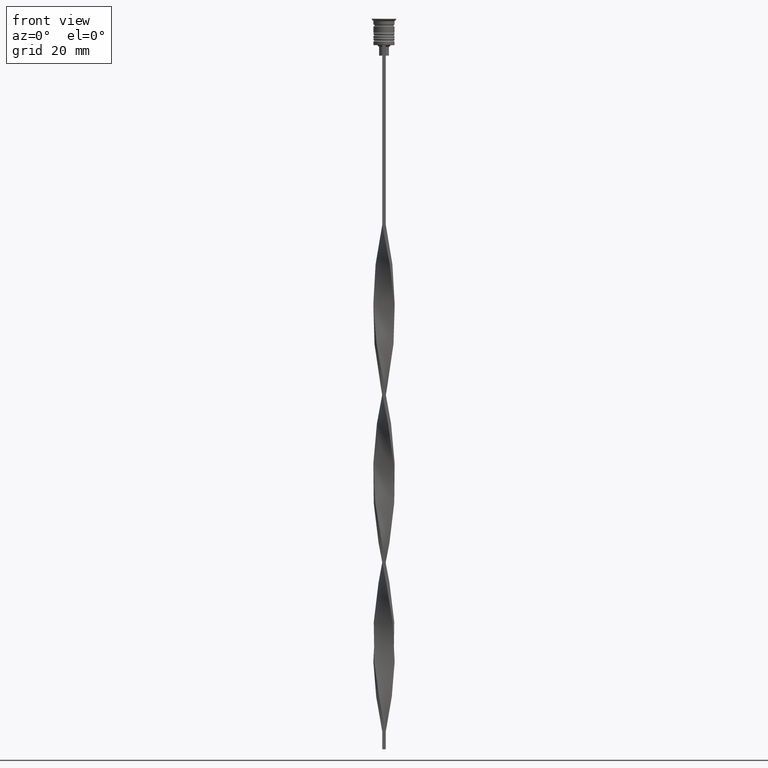
[diagram: clean part render]
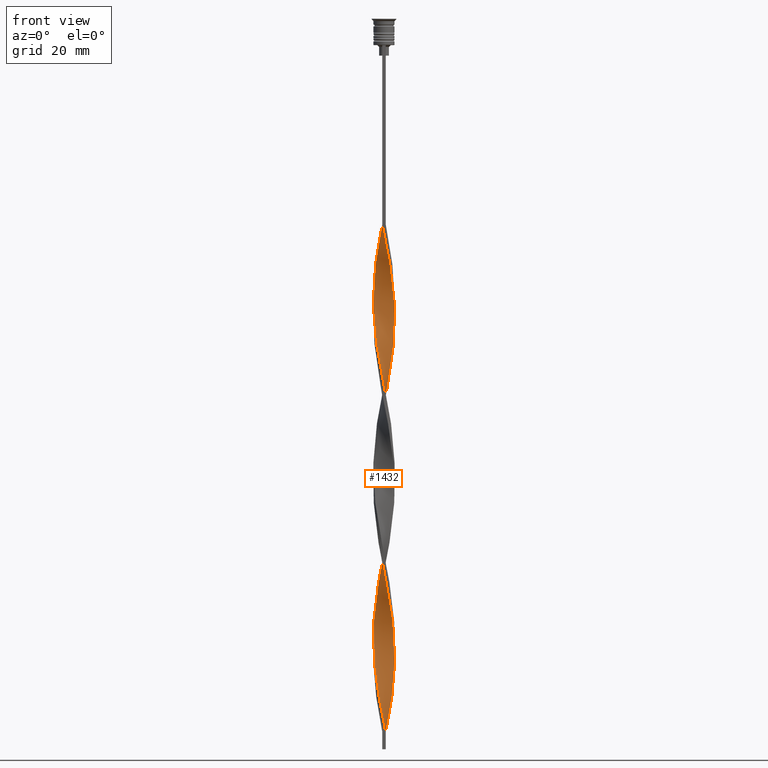
[diagram: same view with one face highlighted and labeled with its STEP entity id]
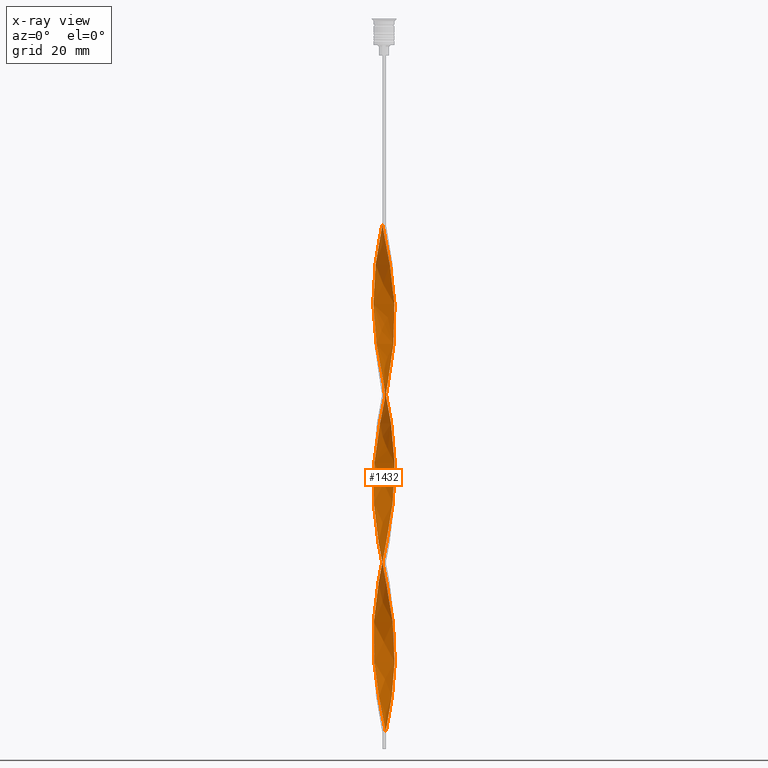
[diagram: x-ray of the same camera — body ghosted, the highlighted face saturated]
A machine part, front view. The second image highlights one B-rep face of the part: STEP entity #1432.
The next image is the same camera in x-ray: the body ghosted, the highlighted face saturated — about 0% of this face is hidden behind the body in this view.
In plain terms, the highlighted face is a freeform B-spline surface patch.
Its self-contained STEP definition (entity closure, byte-faithful):
#6 = CARTESIAN_POINT ( 'NONE',  ( -0.05976200360776012799, -3.040794057959990582, -199.6764705882352757 ) ) ;
#7 = CARTESIAN_POINT ( 'NONE',  ( 3.033336708616754418, -0.2210620097576117826, -179.9117647058823195 ) ) ;
#9 = ORIENTED_EDGE ( 'NONE', *, *, #1843, .F. ) ;
#16 = CARTESIAN_POINT ( 'NONE',  ( 2.564815624776293657, -1.658658015008194653, -119.2058823529411455 ) ) ;
#26 = CARTESIAN_POINT ( 'NONE',  ( 3.033336708616754418, 0.2210620097576116716, -129.0882352941176521 ) ) ;
#39 = CARTESIAN_POINT ( 'NONE',  ( -3.012852296747023484, -0.5021420494578371363, -82.49999999999998579 ) ) ;
#48 = CARTESIAN_POINT ( 'NONE',  ( 2.092734363651089780, -2.206912522777889407, -72.61764705882352189 ) ) ;
#60 = CARTESIAN_POINT ( 'NONE',  ( -1.307479267857234895, 2.760420903407855509, -62.73529411764705799 ) ) ;
#68 = CARTESIAN_POINT ( 'NONE',  ( 3.033336708616754418, -0.2210620097576117826, -83.91176470588234793 ) ) ;
#81 = CARTESIAN_POINT ( 'NONE',  ( 2.941068349153452832, 0.7746721665374219912, -131.9117647058823479 ) ) ;
#85 = CARTESIAN_POINT ( 'NONE',  ( 0.5000000000000004441, 3.000000000000000000, -106.4999999999999858 ) ) ;
#86 = CARTESIAN_POINT ( 'NONE',  ( 1.651582472329342188, -2.553874573485256150, -165.7941176470588118 ) ) ;
#88 = CARTESIAN_POINT ( 'NONE',  ( 1.792442958670039665, 2.473170806831126445, -195.4411764705882604 ) ) ;
#103 = CARTESIAN_POINT ( 'NONE',  ( 1.154187920767260067, -2.813867488627520785, -66.97058823529411598 ) ) ;
#104 = CARTESIAN_POINT ( 'NONE',  ( -0.3415330684894307689, 3.035256292798965916, -110.7352941176470438 ) ) ;
#118 = CARTESIAN_POINT ( 'NONE',  ( 3.033336708616754418, 0.2210620097576116716, -129.0882352941176521 ) ) ;
#119 = CARTESIAN_POINT ( 'NONE',  ( -1.651582472329342632, -2.553874573485255706, -191.2058823529411598 ) ) ;
#125 = CARTESIAN_POINT ( 'NONE',  ( 2.004405056496874504, 2.287435325750164505, -98.02941176470588402 ) ) ;
#139 = CARTESIAN_POINT ( 'NONE',  ( 2.216367154323709343, -2.101699844669203454, -116.3823529411764781 ) ) ;
#146 = B_SPLINE_CURVE_WITH_KNOTS ( 'NONE', 3,
 ( #2014, #611, #2029, #274 ),
 .UNSPECIFIED., .F., .F.,
 ( 4, 4 ),
 ( 0.000000000000000000, 1.000000000000000000 ),
 .UNSPECIFIED. ) ;
#155 = CARTESIAN_POINT ( 'NONE',  ( -1.307479267857234673, 2.760420903407855509, -62.73529411764705799 ) ) ;
#158 = CARTESIAN_POINT ( 'NONE',  ( -2.092734363651090668, -2.206912522777888963, -92.38235294117646390 ) ) ;
#164 = CARTESIAN_POINT ( 'NONE',  ( 0.8934446992291309453, -2.920818749814322324, -161.5588235294117680 ) ) ;
#175 = CARTESIAN_POINT ( 'NONE',  ( -1.154187920767260067, -2.813867488627520785, -98.02941176470588402 ) ) ;
#186 = CARTESIAN_POINT ( 'NONE',  ( -0.6174888838592809126, -2.978037521306644120, -100.8529411764705941 ) ) ;
#198 = CARTESIAN_POINT ( 'NONE',  ( 0.4999999999999997780, -3.000000000000000000, -106.4999999999999858 ) ) ;
#202 = CARTESIAN_POINT ( 'NONE',  ( -2.628006467404950364, -1.556601299988307208, -88.14705882352940591 ) ) ;
#206 = CARTESIAN_POINT ( 'NONE',  ( -0.8934446992291307232, 2.920818749814322324, -113.5588235294117538 ) ) ;
#207 = CARTESIAN_POINT ( 'NONE',  ( -0.2220090612739108182, -3.046331823121015248, -59.91176470588236214 ) ) ;
#208 = CARTESIAN_POINT ( 'NONE',  ( -2.825922375284401156, -1.159132575987103841, -138.9705882352941160 ) ) ;
#224 = CARTESIAN_POINT ( 'NONE',  ( 1.307479267857235561, 2.760420903407855064, -102.2647058823529420 ) ) ;
#242 = CARTESIAN_POINT ( 'NONE',  ( -2.748645434482415606, -1.301901791802658526, -182.7352941176470438 ) ) ;
#243 = CARTESIAN_POINT ( 'NONE',  ( 2.628006467404950364, -1.556601299988307652, -172.8529411764705799 ) ) ;
#247 = CARTESIAN_POINT ( 'NONE',  ( -1.414931142305389633, 2.706916227440719691, -116.3823529411764781 ) ) ;
#264 = CARTESIAN_POINT ( 'NONE',  ( -2.297234924948885926, -2.012992126025985762, -186.9705882352941444 ) ) ;
#265 = CARTESIAN_POINT ( 'NONE',  ( 2.216367154323710675, 2.101699844669202566, -192.6176470588235077 ) ) ;
#274 = CARTESIAN_POINT ( 'NONE',  ( 0.4999999999999997780, -3.000000000000000000, -202.4999999999999716 ) ) ;
#281 = CARTESIAN_POINT ( 'NONE',  ( -0.3415330684894313795, -3.035256292798966360, -198.2647058823529562 ) ) ;
#282 = CARTESIAN_POINT ( 'NONE',  ( 1.307479267857235561, 2.760420903407855064, -198.2647058823529562 ) ) ;
#300 = CARTESIAN_POINT ( 'NONE',  ( 2.748645434482416050, -1.301901791802658082, -174.2647058823529278 ) ) ;
#335 = CARTESIAN_POINT ( 'NONE',  ( -3.022308424554498441, 0.3400761486298386482, -78.26470588235292780 ) ) ;
#345 = CARTESIAN_POINT ( 'NONE',  ( -1.414931142305389411, 2.706916227440719691, -116.3823529411764781 ) ) ;
#375 = CARTESIAN_POINT ( 'NONE',  ( 1.549961113263636836, 2.616795855119490533, -100.8529411764705941 ) ) ;
#378 = CARTESIAN_POINT ( 'NONE',  ( 2.390591389550001722, 1.880178929838698387, -191.2058823529411598 ) ) ;
#391 = CARTESIAN_POINT ( 'NONE',  ( 1.414931142305390743, 2.706916227440719691, -144.6176470588235361 ) ) ;
#394 = CARTESIAN_POINT ( 'NONE',  ( -0.5000000000000001110, -3.000000000000000000, -58.50000000000000000 ) ) ;
#395 = CARTESIAN_POINT ( 'NONE',  ( 1.792442958670039665, 2.473170806831126445, -99.44117647058823195 ) ) ;
#409 = CARTESIAN_POINT ( 'NONE',  ( -3.033336708616754862, -0.2210620097576112830, -81.08823529411763786 ) ) ;
#420 = CARTESIAN_POINT ( 'NONE',  ( -2.092734363651090668, -2.206912522777888963, -92.38235294117646390 ) ) ;
#426 = CARTESIAN_POINT ( 'NONE',  ( 1.792442958670038999, -2.473170806831127333, -113.5588235294117396 ) ) ;
#427 = CARTESIAN_POINT ( 'NONE',  ( 0.2220090612739113178, -3.046331823121015248, -201.0882352941176237 ) ) ;
#431 = CARTESIAN_POINT ( 'NONE',  ( 2.748645434482416050, -1.301901791802658082, -78.26470588235292780 ) ) ;
#437 = CARTESIAN_POINT ( 'NONE',  ( 3.033336708616754418, -0.2210620097576117826, -179.9117647058823195 ) ) ;
#443 = CARTESIAN_POINT ( 'NONE',  ( -2.297234924948886370, -2.012992126025985762, -90.97058823529413019 ) ) ;
#449 = CARTESIAN_POINT ( 'NONE',  ( -2.297234924948885926, -2.012992126025985762, -90.97058823529411598 ) ) ;
#454 = CARTESIAN_POINT ( 'NONE',  ( -0.2220090612739108182, -3.046331823121015248, -155.9117647058823763 ) ) ;
#463 = CARTESIAN_POINT ( 'NONE',  ( -2.216367154323710231, 2.101699844669202566, -68.38235294117646390 ) ) ;
#466 = CARTESIAN_POINT ( 'NONE',  ( -1.042735103291662080, 2.857044540143419908, -157.3235294117646959 ) ) ;
#467 = CARTESIAN_POINT ( 'NONE',  ( -2.564815624776293657, 1.658658015008195097, -167.2058823529411882 ) ) ;
#479 = CARTESIAN_POINT ( 'NONE',  ( 0.2220090612739113178, -3.046331823121015248, -105.0882352941176521 ) ) ;
#486 = CARTESIAN_POINT ( 'NONE',  ( -1.888233802353294744, -2.400832919529793941, -93.79411764705882604 ) ) ;
#491 = CARTESIAN_POINT ( 'NONE',  ( -2.908359051953456120, -0.8896334216520842553, -137.5588235294117680 ) ) ;
#508 = CARTESIAN_POINT ( 'NONE',  ( 0.6174888838592809126, -2.978037521306644120, -160.1470588235293917 ) ) ;
#512 = CARTESIAN_POINT ( 'NONE',  ( -2.908359051953456120, -0.8896334216520842553, -137.5588235294117680 ) ) ;
#530 = CARTESIAN_POINT ( 'NONE',  ( -2.825922375284401156, -1.159132575987104063, -138.9705882352941160 ) ) ;
#541 = CARTESIAN_POINT ( 'NONE',  ( -3.012852296747023484, -0.5021420494578371363, -178.5000000000000000 ) ) ;
#542 = CARTESIAN_POINT ( 'NONE',  ( -1.549961113263637058, -2.616795855119490533, -148.8529411764705799 ) ) ;
#547 = CARTESIAN_POINT ( 'NONE',  ( -3.022308424554498441, -0.3400761486298386482, -134.7352941176470722 ) ) ;
#552 = EDGE_LOOP ( 'NONE', ( #2044, #1750, #3477, #9 ) ) ;
#563 = CARTESIAN_POINT ( 'NONE',  ( 2.092734363651089780, -2.206912522777889407, -168.6176470588235077 ) ) ;
#567 = CARTESIAN_POINT ( 'NONE',  ( -3.033336708616754418, 0.2210620097576128096, -131.9117647058823479 ) ) ;
#583 = CARTESIAN_POINT ( 'NONE',  ( -1.154187920767260067, -2.813867488627520785, -194.0294117647058556 ) ) ;
#584 = CARTESIAN_POINT ( 'NONE',  ( 1.651582472329342188, -2.553874573485256150, -165.7941176470588118 ) ) ;
#611 = CARTESIAN_POINT ( 'NONE',  ( 0.5000000000000002220, 1.000000000000000000, -202.4999999999999716 ) ) ;
#640 = CARTESIAN_POINT ( 'NONE',  ( -2.748645434482415606, 1.301901791802659192, -126.2647058823529420 ) ) ;
#670 = CARTESIAN_POINT ( 'NONE',  ( -0.5000000000000001110, 3.000000000000000000, -154.4999999999999716 ) ) ;
#676 = CARTESIAN_POINT ( 'NONE',  ( 2.628006467404950364, -1.556601299988307430, -172.8529411764705799 ) ) ;
#683 = CARTESIAN_POINT ( 'NONE',  ( 1.042735103291661414, -2.857044540143419908, -109.3235294117646959 ) ) ;
#687 = CARTESIAN_POINT ( 'NONE',  ( 2.908359051953456564, -0.8896334216520829230, -123.4411764705882177 ) ) ;
#691 = CARTESIAN_POINT ( 'NONE',  ( 0.8934446992291309453, -2.920818749814322324, -65.55882352941178226 ) ) ;
#706 = CARTESIAN_POINT ( 'NONE',  ( 2.462620696176917257, 1.784796713007146707, -137.5588235294117680 ) ) ;
#710 = CARTESIAN_POINT ( 'NONE',  ( 2.990795728622512417, 0.6201342673170633368, -88.14705882352940591 ) ) ;
#725 = CARTESIAN_POINT ( 'NONE',  ( 1.888233802353293633, 2.400832919529794385, -141.7941176470587834 ) ) ;
#726 = CARTESIAN_POINT ( 'NONE',  ( -0.8934446992291313894, -2.920818749814322324, -195.4411764705882604 ) ) ;
#732 = CARTESIAN_POINT ( 'NONE',  ( -0.5000000000000001110, -3.000000000000000000, -154.4999999999999716 ) ) ;
#744 = CARTESIAN_POINT ( 'NONE',  ( -1.792442958670039221, 2.473170806831127333, -65.55882352941178226 ) ) ;
#747 = CARTESIAN_POINT ( 'NONE',  ( 3.053821120486486684, -0.06001802994261339758, -127.6764705882352757 ) ) ;
#748 = CARTESIAN_POINT ( 'NONE',  ( -2.825922375284401156, 1.159132575987104063, -170.0294117647058556 ) ) ;
#759 = CARTESIAN_POINT ( 'NONE',  ( -1.414931142305390299, -2.706916227440719691, -96.61764705882353610 ) ) ;
#764 = CARTESIAN_POINT ( 'NONE',  ( -2.216367154323710231, 2.101699844669202566, -164.3823529411764923 ) ) ;
#765 = CARTESIAN_POINT ( 'NONE',  ( -1.307479267857234895, 2.760420903407855509, -158.7352941176470154 ) ) ;
#769 = CARTESIAN_POINT ( 'NONE',  ( -3.053821120486486240, -0.06001802994261502822, -133.3235294117647243 ) ) ;
#779 = CARTESIAN_POINT ( 'NONE',  ( 1.792442958670038777, -2.473170806831126889, -113.5588235294117538 ) ) ;
#787 = CARTESIAN_POINT ( 'NONE',  ( 2.390591389550001278, -1.880178929838698831, -117.7941176470588118 ) ) ;
#788 = CARTESIAN_POINT ( 'NONE',  ( -2.628006467404950364, -1.556601299988307208, -184.1470588235293917 ) ) ;
#792 = CARTESIAN_POINT ( 'NONE',  ( 2.941068349153452388, -0.7746721665374233234, -81.08823529411763786 ) ) ;
#793 = CARTESIAN_POINT ( 'NONE',  ( -2.216367154323710231, -2.101699844669202566, -144.6176470588235361 ) ) ;
#810 = CARTESIAN_POINT ( 'NONE',  ( -1.888233802353294744, 2.400832919529793497, -119.2058823529411455 ) ) ;
#811 = CARTESIAN_POINT ( 'NONE',  ( -1.549961113263637058, -2.616795855119490533, -148.8529411764705799 ) ) ;
#825 = CARTESIAN_POINT ( 'NONE',  ( 2.695369000030346740, 1.408895295497649247, -92.38235294117646390 ) ) ;
#839 = CARTESIAN_POINT ( 'NONE',  ( 1.792442958670039443, 2.473170806831126001, -195.4411764705882604 ) ) ;
#843 = CARTESIAN_POINT ( 'NONE',  ( 2.908359051953456564, 0.8896334216520833671, -89.55882352941175384 ) ) ;
#859 = CARTESIAN_POINT ( 'NONE',  ( -0.2220090612739108182, -3.046331823121014803, -155.9117647058824048 ) ) ;
#873 = CARTESIAN_POINT ( 'NONE',  ( 0.2220090612739113178, -3.046331823121015692, -201.0882352941176237 ) ) ;
#890 = CARTESIAN_POINT ( 'NONE',  ( -2.564815624776293657, 1.658658015008195097, -71.20588235294118817 ) ) ;
#896 = VERTEX_POINT ( 'NONE', #2369 ) ;
#917 = CARTESIAN_POINT ( 'NONE',  ( 2.462620696176917257, 1.784796713007146707, -137.5588235294117680 ) ) ;
#921 = CARTESIAN_POINT ( 'NONE',  ( -2.297234924948885926, 2.012992126025986206, -122.0294117647058840 ) ) ;
#929 = CARTESIAN_POINT ( 'NONE',  ( -2.748645434482415606, -1.301901791802658526, -86.73529411764704378 ) ) ;
#933 = CARTESIAN_POINT ( 'NONE',  ( 0.3415330684894318236, 3.035256292798965916, -150.2647058823529278 ) ) ;
#936 = CARTESIAN_POINT ( 'NONE',  ( 2.748645434482416050, -1.301901791802658082, -78.26470588235292780 ) ) ;
#939 = CARTESIAN_POINT ( 'NONE',  ( 3.022308424554498885, 0.3400761486298390923, -182.7352941176470438 ) ) ;
#947 = CARTESIAN_POINT ( 'NONE',  ( -2.695369000030346740, 1.408895295497649469, -72.61764705882352189 ) ) ;
#954 = CARTESIAN_POINT ( 'NONE',  ( 2.564815624776293657, 1.658658015008195097, -93.79411764705882604 ) ) ;
#959 = CARTESIAN_POINT ( 'NONE',  ( 1.307479267857235339, 2.760420903407855064, -198.2647058823529562 ) ) ;
#967 = CARTESIAN_POINT ( 'NONE',  ( -1.042735103291662080, 2.857044540143419908, -61.32352941176470296 ) ) ;
#973 = CARTESIAN_POINT ( 'NONE',  ( 1.414931142305390299, -2.706916227440719691, -68.38235294117646390 ) ) ;
#977 = CARTESIAN_POINT ( 'NONE',  ( 1.042735103291662080, 2.857044540143419908, -199.6764705882352757 ) ) ;
#988 = CARTESIAN_POINT ( 'NONE',  ( 2.825922375284401156, -1.159132575987104508, -122.0294117647058840 ) ) ;
#991 = FACE_OUTER_BOUND ( 'NONE', #552, .T. ) ;
#992 = CARTESIAN_POINT ( 'NONE',  ( 2.628006467404950364, -1.556601299988307430, -76.85294117647059409 ) ) ;
#1006 = CARTESIAN_POINT ( 'NONE',  ( -0.5000000000000001110, -3.000000000000000000, -58.50000000000000000 ) ) ;
#1010 = CARTESIAN_POINT ( 'NONE',  ( -1.307479267857234673, 2.760420903407855509, -158.7352941176470438 ) ) ;
#1011 = CARTESIAN_POINT ( 'NONE',  ( -1.154187920767260067, -2.813867488627520785, -194.0294117647058556 ) ) ;
#1030 = CARTESIAN_POINT ( 'NONE',  ( -1.549961113263636836, 2.616795855119490533, -64.14705882352940591 ) ) ;
#1033 = CARTESIAN_POINT ( 'NONE',  ( 0.8934446992291303902, 2.920818749814322324, -147.4411764705882320 ) ) ;
#1037 = CARTESIAN_POINT ( 'NONE',  ( 0.8934446992291309453, -2.920818749814322324, -65.55882352941179647 ) ) ;
#1046 = CARTESIAN_POINT ( 'NONE',  ( -1.651582472329342632, -2.553874573485255706, -95.20588235294117396 ) ) ;
#1047 = CARTESIAN_POINT ( 'NONE',  ( -3.033336708616754862, -0.2210620097576112830, -177.0882352941176237 ) ) ;
#1052 = CARTESIAN_POINT ( 'NONE',  ( 0.05976200360776001697, -3.040794057959990582, -61.32352941176470296 ) ) ;
#1065 = CARTESIAN_POINT ( 'NONE',  ( 1.549961113263637280, -2.616795855119490533, -112.1470588235294059 ) ) ;
#1070 =( BOUNDED_CURVE ( )  B_SPLINE_CURVE ( 2, ( #2493, #207, #1052, #2213, #1837, #691, #3575, #2380, #1249, #3555, #48, #2661, #2131, #992, #936, #3537, #3269, #2362, #68, #1853, #2986, #710, #2712, #3233, #3256, #954, #1517, #2969, #125, #395, #375, #1549, #1285, #2428, #85, #2690, #1532, #104, #1264, #2149, #3287, #345, #1500, #2644, #3501, #921, #2081, #3219, #640, #2494, #1634, #3389, #3636, #3066, #3365, #1930, #491, #208, #3090, #1659, #2533, #793, #2471, #1092, #811, #2170, #1950, #3313, #732, #454, #1613, #1678, #2754, #164, #1332, #2090, #86, #2734, #1310, #2452, #2664, #676, #1878, #3519, #1840, #3560, #437, #2972, #939, #2098, #1290, #1823, #2958, #1856, #378, #1535, #2676, #88, #3541, #959, #977, #2990, #2119 ),
 .UNSPECIFIED., .F., .T. ) 
 B_SPLINE_CURVE_WITH_KNOTS ( ( 3, 2, 2, 2, 2, 2, 2, 2, 2, 2, 2, 2, 2, 2, 2, 2, 2, 2, 2, 2, 2, 2, 2, 2, 2, 2, 2, 2, 2, 2, 2, 2, 2, 2, 2, 2, 2, 2, 2, 2, 2, 2, 2, 2, 2, 2, 2, 2, 2, 2, 2, 3 ),
 ( 0.000000000000000000, 0.01470588235294117453, 0.02941176470588234906, 0.04411764705882353227, 0.05882352941176469813, 0.07352941176470588480, 0.08823529411764706454, 0.1029411764705882443, 0.1176470588235293963, 0.1323529411764705899, 0.1470588235294117696, 0.1617647058823529493, 0.1764705882352941291, 0.1911764705882352811, 0.2058823529411764885, 0.2205882352941176405, 0.2352941176470587925, 0.2500000000000000000, 0.2647058823529411797, 0.2794117647058823595, 0.2941176470588235392, 0.3088235294117647189, 0.3235294117647058987, 0.3382352941176470229, 0.3529411764705882582, 0.3676470588235294379, 0.3823529411764705621, 0.3970588235294117418, 0.4117647058823529771, 0.4264705882352941013, 0.4411764705882352811, 0.4558823529411764608, 0.4705882352941175850, 0.4852941176470588203, 0.5000000000000000000, 0.5147058823529411242, 0.5294117647058823595, 0.5441176470588234837, 0.5588235294117647189, 0.5735294117647058432, 0.5882352941176470784, 0.6029411764705882026, 0.6176470588235294379, 0.6323529411764705621, 0.6470588235294117974, 0.6617647058823529216, 0.6764705882352940458, 0.6911764705882351700, 0.7058823529411765163, 0.7205882352941176405, 0.7352941176470588758, 0.7500000000000000000 ),
 .UNSPECIFIED. ) 
 CURVE ( )  GEOMETRIC_REPRESENTATION_ITEM ( )  RATIONAL_B_SPLINE_CURVE ( ( 1.000000000000000000, 0.9957341762950344677, 1.000000000000000000, 0.9957341762950344677, 1.000000000000000000, 0.9957341762950344677, 1.000000000000000000, 0.9957341762950344677, 1.000000000000000000, 0.9957341762950344677, 1.000000000000000000, 0.9957341762950344677, 1.000000000000000000, 0.9957341762950344677, 1.000000000000000000, 0.9957341762950344677, 1.000000000000000000, 0.9957341762950344677, 1.000000000000000000, 0.9957341762950344677, 1.000000000000000000, 0.9957341762950344677, 1.000000000000000000, 0.9957341762950344677, 1.000000000000000000, 0.9957341762950344677, 1.000000000000000000, 0.9957341762950344677, 1.000000000000000000, 0.9957341762950344677, 1.000000000000000000, 0.9957341762950344677, 1.000000000000000000, 0.9957341762950344677, 1.000000000000000000, 0.9957341762950344677, 1.000000000000000000, 0.9957341762950344677, 1.000000000000000000, 0.9957341762950344677, 1.000000000000000000, 0.9957341762950344677, 1.000000000000000000, 0.9957341762950344677, 1.000000000000000000, 0.9957341762950344677, 1.000000000000000000, 0.9957341762950344677, 1.000000000000000000, 0.9957341762950344677, 1.000000000000000000, 0.9957341762950344677, 1.000000000000000000, 0.9957341762950344677, 1.000000000000000000, 0.9957341762950344677, 1.000000000000000000, 0.9957341762950344677, 1.000000000000000000, 0.9957341762950344677, 1.000000000000000000, 0.9957341762950344677, 1.000000000000000000, 0.9957341762950344677, 1.000000000000000000, 0.9957341762950344677, 1.000000000000000000, 0.9957341762950344677, 1.000000000000000000, 0.9957341762950344677, 1.000000000000000000, 0.9957341762950344677, 1.000000000000000000, 0.9957341762950344677, 1.000000000000000000, 0.9957341762950344677, 1.000000000000000000, 0.9957341762950344677, 1.000000000000000000, 0.9957341762950344677, 1.000000000000000000, 0.9957341762950344677, 1.000000000000000000, 0.9957341762950344677, 1.000000000000000000, 0.9957341762950344677, 1.000000000000000000, 0.9957341762950344677, 1.000000000000000000, 0.9957341762950344677, 1.000000000000000000, 0.9957341762950344677, 1.000000000000000000, 0.9957341762950344677, 1.000000000000000000, 0.9957341762950344677, 1.000000000000000000, 0.9957341762950344677, 1.000000000000000000, 0.9957341762950344677, 1.000000000000000000, 0.9957341762950344677, 1.000000000000000000 ) ) 
 REPRESENTATION_ITEM ( '' )  );
#1080 = CARTESIAN_POINT ( 'NONE',  ( 2.216367154323709787, -2.101699844669203454, -116.3823529411764781 ) ) ;
#1091 = CARTESIAN_POINT ( 'NONE',  ( 3.012852296747023484, -0.5021420494578375804, -82.49999999999998579 ) ) ;
#1092 = CARTESIAN_POINT ( 'NONE',  ( -1.792442958670038777, -2.473170806831127333, -147.4411764705882320 ) ) ;
#1112 = CARTESIAN_POINT ( 'NONE',  ( 3.012852296747023484, -0.5021420494578375804, -178.4999999999999716 ) ) ;
#1115 = CARTESIAN_POINT ( 'NONE',  ( 2.390591389550001722, 1.880178929838698387, -95.20588235294117396 ) ) ;
#1129 = CARTESIAN_POINT ( 'NONE',  ( -1.414931142305390077, -2.706916227440719691, -192.6176470588235077 ) ) ;
#1134 = CARTESIAN_POINT ( 'NONE',  ( 3.053821120486486240, 0.06001802994261470209, -85.32352941176469585 ) ) ;
#1147 = CARTESIAN_POINT ( 'NONE',  ( 2.297234924948886370, -2.012992126025985318, -170.0294117647058556 ) ) ;
#1151 = CARTESIAN_POINT ( 'NONE',  ( 0.2220090612739105962, 3.046331823121014803, -107.9117647058823621 ) ) ;
#1169 = CARTESIAN_POINT ( 'NONE',  ( 3.022308424554498885, 0.3400761486298390923, -182.7352941176470438 ) ) ;
#1172 = CARTESIAN_POINT ( 'NONE',  ( 2.825922375284401156, -1.159132575987104508, -122.0294117647058982 ) ) ;
#1184 = CARTESIAN_POINT ( 'NONE',  ( -2.216367154323710675, 2.101699844669202566, -68.38235294117646390 ) ) ;
#1189 = CARTESIAN_POINT ( 'NONE',  ( 2.869284401559882625, 1.047202283617010066, -133.3235294117647243 ) ) ;
#1222 = CARTESIAN_POINT ( 'NONE',  ( -2.004405056496874504, 2.287435325750164505, -66.97058823529411598 ) ) ;
#1226 = CARTESIAN_POINT ( 'NONE',  ( 2.628006467404950808, 1.556601299988306542, -136.1470588235294201 ) ) ;
#1244 = CARTESIAN_POINT ( 'NONE',  ( 0.8934446992291303902, 2.920818749814322324, -147.4411764705882320 ) ) ;
#1249 = CARTESIAN_POINT ( 'NONE',  ( 1.651582472329342188, -2.553874573485256150, -69.79411764705881183 ) ) ;
#1264 = CARTESIAN_POINT ( 'NONE',  ( -0.6174888838592813567, 2.978037521306644120, -112.1470588235294059 ) ) ;
#1281 = CARTESIAN_POINT ( 'NONE',  ( 2.869284401559882625, 1.047202283617010066, -133.3235294117646959 ) ) ;
#1285 = CARTESIAN_POINT ( 'NONE',  ( 1.042735103291662080, 2.857044540143419908, -103.6764705882352899 ) ) ;
#1290 = CARTESIAN_POINT ( 'NONE',  ( 2.908359051953456564, 0.8896334216520833671, -185.5588235294117396 ) ) ;
#1303 = CARTESIAN_POINT ( 'NONE',  ( -2.564815624776293657, 1.658658015008195097, -167.2058823529411882 ) ) ;
#1304 = CARTESIAN_POINT ( 'NONE',  ( -2.462620696176917701, -1.784796713007145819, -185.5588235294117396 ) ) ;
#1310 = CARTESIAN_POINT ( 'NONE',  ( 2.092734363651089780, -2.206912522777889407, -168.6176470588235077 ) ) ;
#1318 = CARTESIAN_POINT ( 'NONE',  ( -0.8934446992291313894, -2.920818749814322324, -99.44117647058823195 ) ) ;
#1325 = CARTESIAN_POINT ( 'NONE',  ( -2.004405056496874504, 2.287435325750164505, -162.9705882352940876 ) ) ;
#1332 = CARTESIAN_POINT ( 'NONE',  ( 1.154187920767260067, -2.813867488627520785, -162.9705882352940876 ) ) ;
#1342 = CARTESIAN_POINT ( 'NONE',  ( -2.564815624776293657, 1.658658015008195097, -71.20588235294118817 ) ) ;
#1346 = CARTESIAN_POINT ( 'NONE',  ( -0.5000000000000001110, 3.000000000000000000, -58.50000000000000000 ) ) ;
#1350 = CARTESIAN_POINT ( 'NONE',  ( 2.695369000030346740, -1.408895295497649913, -120.6176470588235219 ) ) ;
#1362 = CARTESIAN_POINT ( 'NONE',  ( -3.053821120486486240, 0.06001802994261448004, -79.67647058823528994 ) ) ;
#1368 = CARTESIAN_POINT ( 'NONE',  ( 0.05976200360775915654, 3.040794057959990582, -151.6764705882353041 ) ) ;
#1369 = CARTESIAN_POINT ( 'NONE',  ( -1.549961113263636836, 2.616795855119490533, -160.1470588235293917 ) ) ;
#1372 = CARTESIAN_POINT ( 'NONE',  ( -2.748645434482415606, 1.301901791802659192, -126.2647058823529420 ) ) ;
#1390 = CARTESIAN_POINT ( 'NONE',  ( -2.564815624776292768, -1.658658015008195763, -141.7941176470588118 ) ) ;
#1404 = CARTESIAN_POINT ( 'NONE',  ( -3.033336708616754862, -0.2210620097576112830, -177.0882352941176237 ) ) ;
#1408 = CARTESIAN_POINT ( 'NONE',  ( -2.216367154323710675, -2.101699844669202566, -144.6176470588235361 ) ) ;
#1425 = CARTESIAN_POINT ( 'NONE',  ( -2.004405056496875837, -2.287435325750163617, -146.0294117647058556 ) ) ;
#1428 = CARTESIAN_POINT ( 'NONE',  ( -2.092734363651089780, 2.206912522777889851, -120.6176470588235219 ) ) ;
#1432 = ADVANCED_FACE ( 'NONE', ( #991 ), #3273, .T. ) ;
#1443 = CARTESIAN_POINT ( 'NONE',  ( 3.022308424554498885, 0.3400761486298390923, -86.73529411764704378 ) ) ;
#1452 = CARTESIAN_POINT ( 'NONE',  ( -3.012852296747023484, -0.5021420494578371363, -82.49999999999998579 ) ) ;
#1459 = CARTESIAN_POINT ( 'NONE',  ( -2.869284401559882625, -1.047202283617009844, -181.3235294117646959 ) ) ;
#1460 = CARTESIAN_POINT ( 'NONE',  ( 0.8934446992291309453, -2.920818749814322324, -161.5588235294117396 ) ) ;
#1495 = CARTESIAN_POINT ( 'NONE',  ( -3.053821120486486240, 0.06001802994261448004, -79.67647058823528994 ) ) ;
#1500 = CARTESIAN_POINT ( 'NONE',  ( -1.651582472329342188, 2.553874573485256150, -117.7941176470588118 ) ) ;
#1511 = CARTESIAN_POINT ( 'NONE',  ( 1.888233802353293633, 2.400832919529794385, -141.7941176470588118 ) ) ;
#1517 = CARTESIAN_POINT ( 'NONE',  ( 2.390591389550001722, 1.880178929838698387, -95.20588235294117396 ) ) ;
#1532 = CARTESIAN_POINT ( 'NONE',  ( -0.05976200360775937165, 3.040794057959990582, -109.3235294117646959 ) ) ;
#1535 = CARTESIAN_POINT ( 'NONE',  ( 2.216367154323710231, 2.101699844669202566, -192.6176470588235077 ) ) ;
#1540 = CARTESIAN_POINT ( 'NONE',  ( 0.5000000000000004441, 3.000000000000000000, -202.4999999999999716 ) ) ;
#1545 = CARTESIAN_POINT ( 'NONE',  ( 3.053821120486486684, -0.06001802994261339758, -127.6764705882352615 ) ) ;
#1549 = CARTESIAN_POINT ( 'NONE',  ( 1.307479267857235339, 2.760420903407855064, -102.2647058823529420 ) ) ;
#1563 = CARTESIAN_POINT ( 'NONE',  ( -2.748645434482415606, -1.301901791802658526, -86.73529411764704378 ) ) ;
#1578 = CARTESIAN_POINT ( 'NONE',  ( -0.3415330684894314350, -3.035256292798966360, -102.2647058823529420 ) ) ;
#1584 = CARTESIAN_POINT ( 'NONE',  ( 3.022308424554498885, -0.3400761486298397585, -126.2647058823529420 ) ) ;
#1585 = CARTESIAN_POINT ( 'NONE',  ( 0.4999999999999997780, -3.000000000000000000, -202.4999999999999716 ) ) ;
#1589 = CARTESIAN_POINT ( 'NONE',  ( 2.869284401559882625, -1.047202283617009400, -79.67647058823528994 ) ) ;
#1602 = CARTESIAN_POINT ( 'NONE',  ( -3.022308424554498441, 0.3400761486298386482, -78.26470588235292780 ) ) ;
#1608 = CARTESIAN_POINT ( 'NONE',  ( 1.154187920767261621, 2.813867488627519897, -146.0294117647058556 ) ) ;
#1613 = CARTESIAN_POINT ( 'NONE',  ( 0.05976200360776001697, -3.040794057959990582, -157.3235294117646959 ) ) ;
#1624 = LINE ( 'NONE', #1006, #3205 ) ;
#1628 = CARTESIAN_POINT ( 'NONE',  ( -3.022308424554498441, 0.3400761486298386482, -174.2647058823529278 ) ) ;
#1629 = CARTESIAN_POINT ( 'NONE',  ( -2.004405056496874504, 2.287435325750164505, -162.9705882352940876 ) ) ;
#1634 = CARTESIAN_POINT ( 'NONE',  ( -2.941068349153452832, 0.7746721665374232124, -129.0882352941176521 ) ) ;
#1644 = CARTESIAN_POINT ( 'NONE',  ( -2.908359051953456564, 0.8896334216520835891, -75.44117647058823195 ) ) ;
#1652 = CARTESIAN_POINT ( 'NONE',  ( 2.908359051953456564, -0.8896334216520829230, -123.4411764705882177 ) ) ;
#1653 = CARTESIAN_POINT ( 'NONE',  ( -3.012852296747023484, -0.5021420494578371363, -178.4999999999999716 ) ) ;
#1658 = CARTESIAN_POINT ( 'NONE',  ( 3.033336708616754418, -0.2210620097576117826, -83.91176470588234793 ) ) ;
#1659 = CARTESIAN_POINT ( 'NONE',  ( -2.564815624776292768, -1.658658015008195763, -141.7941176470587834 ) ) ;
#1673 = CARTESIAN_POINT ( 'NONE',  ( 2.941068349153452388, -0.7746721665374233234, -177.0882352941176237 ) ) ;
#1677 = CARTESIAN_POINT ( 'NONE',  ( 1.042735103291662080, 2.857044540143419908, -103.6764705882352899 ) ) ;
#1678 = CARTESIAN_POINT ( 'NONE',  ( 0.3415330684894307689, -3.035256292798965916, -158.7352941176470438 ) ) ;
#1693 = CARTESIAN_POINT ( 'NONE',  ( 0.4999999999999997780, -3.000000000000000000, -202.4999999999999716 ) ) ;
#1694 = CARTESIAN_POINT ( 'NONE',  ( -1.307479267857235783, -2.760420903407854620, -150.2647058823529278 ) ) ;
#1698 = CARTESIAN_POINT ( 'NONE',  ( -2.390591389550000834, -1.880178929838698831, -143.2058823529411882 ) ) ;
#1712 = CARTESIAN_POINT ( 'NONE',  ( 2.564815624776293657, 1.658658015008195097, -189.7941176470587834 ) ) ;
#1716 = CARTESIAN_POINT ( 'NONE',  ( -2.695369000030347184, -1.408895295497648581, -140.3823529411764639 ) ) ;
#1735 = CARTESIAN_POINT ( 'NONE',  ( 1.792442958670039443, 2.473170806831126001, -99.44117647058823195 ) ) ;
#1750 = ORIENTED_EDGE ( 'NONE', *, *, #1872, .T. ) ;
#1785 = CARTESIAN_POINT ( 'NONE',  ( -2.825922375284401156, 1.159132575987104063, -74.02941176470586981 ) ) ;
#1823 = CARTESIAN_POINT ( 'NONE',  ( 2.825922375284401156, 1.159132575987104286, -186.9705882352941444 ) ) ;
#1837 = CARTESIAN_POINT ( 'NONE',  ( 0.6174888838592809126, -2.978037521306644120, -64.14705882352940591 ) ) ;
#1840 = CARTESIAN_POINT ( 'NONE',  ( 2.941068349153452388, -0.7746721665374233234, -177.0882352941176237 ) ) ;
#1843 = EDGE_CURVE ( 'NONE', #896, #2918, #1070, .T. ) ;
#1853 = CARTESIAN_POINT ( 'NONE',  ( 3.053821120486486240, 0.06001802994261470209, -85.32352941176469585 ) ) ;
#1856 = CARTESIAN_POINT ( 'NONE',  ( 2.564815624776293657, 1.658658015008195097, -189.7941176470588118 ) ) ;
#1863 = CARTESIAN_POINT ( 'NONE',  ( -2.990795728622512417, 0.6201342673170636699, -76.85294117647059409 ) ) ;
#1865 = EDGE_CURVE ( 'NONE', #896, #2751, #1624, .T. ) ;
#1871 = CARTESIAN_POINT ( 'NONE',  ( -0.8934446992291313894, -2.920818749814322324, -99.44117647058823195 ) ) ;
#1872 = EDGE_CURVE ( 'NONE', #2751, #2343, #2864, .T. ) ;
#1874 = CARTESIAN_POINT ( 'NONE',  ( 2.297234924948886370, -2.012992126025985318, -74.02941176470586981 ) ) ;
#1877 = CARTESIAN_POINT ( 'NONE',  ( -0.5000000000000001110, 3.000000000000000000, -58.50000000000000000 ) ) ;
#1878 = CARTESIAN_POINT ( 'NONE',  ( 2.748645434482416050, -1.301901791802658082, -174.2647058823529278 ) ) ;
#1891 = DIRECTION ( 'NONE',  ( 0.000000000000000000, 1.000000000000000000, 0.000000000000000000 ) ) ;
#1894 = CARTESIAN_POINT ( 'NONE',  ( -2.908359051953456564, 0.8896334216520835891, -171.4411764705882035 ) ) ;
#1906 = CARTESIAN_POINT ( 'NONE',  ( -2.004405056496874504, 2.287435325750164505, -66.97058823529411598 ) ) ;
#1909 = CARTESIAN_POINT ( 'NONE',  ( 0.2220090612739113178, -3.046331823121015692, -105.0882352941176521 ) ) ;
#1920 = CARTESIAN_POINT ( 'NONE',  ( -2.825922375284401156, 1.159132575987103841, -74.02941176470586981 ) ) ;
#1926 = CARTESIAN_POINT ( 'NONE',  ( 2.092734363651091112, 2.206912522777888519, -140.3823529411764639 ) ) ;
#1927 = CARTESIAN_POINT ( 'NONE',  ( -3.022308424554498441, 0.3400761486298386482, -174.2647058823529278 ) ) ;
#1930 = CARTESIAN_POINT ( 'NONE',  ( -2.990795728622511973, -0.6201342673170625597, -136.1470588235294201 ) ) ;
#1944 = CARTESIAN_POINT ( 'NONE',  ( 1.042735103291661414, -2.857044540143419908, -109.3235294117646959 ) ) ;
#1945 = CARTESIAN_POINT ( 'NONE',  ( -2.297234924948886370, -2.012992126025985762, -186.9705882352941444 ) ) ;
#1949 = CARTESIAN_POINT ( 'NONE',  ( -1.651582472329342188, 2.553874573485256150, -117.7941176470588118 ) ) ;
#1950 = CARTESIAN_POINT ( 'NONE',  ( -1.042735103291661192, -2.857044540143419908, -151.6764705882353041 ) ) ;
#1964 = CARTESIAN_POINT ( 'NONE',  ( 0.3415330684894307689, -3.035256292798965916, -158.7352941176470154 ) ) ;
#1967 = CARTESIAN_POINT ( 'NONE',  ( -2.297234924948886370, 2.012992126025986206, -122.0294117647058982 ) ) ;
#1981 = CARTESIAN_POINT ( 'NONE',  ( 2.695369000030346740, 1.408895295497649247, -188.3823529411764355 ) ) ;
#1985 = CARTESIAN_POINT ( 'NONE',  ( -2.869284401559883069, 1.047202283617008511, -127.6764705882352615 ) ) ;
#2003 = CARTESIAN_POINT ( 'NONE',  ( 1.549961113263636836, 2.616795855119490533, -196.8529411764705515 ) ) ;
#2007 = CARTESIAN_POINT ( 'NONE',  ( 2.216367154323710675, 2.101699844669202566, -96.61764705882353610 ) ) ;
#2014 = CARTESIAN_POINT ( 'NONE',  ( 0.5000000000000004441, 3.000000000000000000, -202.4999999999999716 ) ) ;
#2021 = CARTESIAN_POINT ( 'NONE',  ( -1.042735103291661192, -2.857044540143419908, -151.6764705882353041 ) ) ;
#2029 = CARTESIAN_POINT ( 'NONE',  ( 0.5000000000000000000, -1.000000000000000000, -202.4999999999999716 ) ) ;
#2036 = CARTESIAN_POINT ( 'NONE',  ( -0.8934446992291313894, -2.920818749814322324, -195.4411764705882604 ) ) ;
#2037 = CARTESIAN_POINT ( 'NONE',  ( 0.05976200360776001697, -3.040794057959990582, -157.3235294117646959 ) ) ;
#2044 = ORIENTED_EDGE ( 'NONE', *, *, #1865, .T. ) ;
#2071 = CARTESIAN_POINT ( 'NONE',  ( -0.5000000000000001110, 3.000000000000000000, -58.50000000000000000 ) ) ;
#2076 = CARTESIAN_POINT ( 'NONE',  ( 2.297234924948886370, 2.012992126025985318, -138.9705882352941160 ) ) ;
#2081 = CARTESIAN_POINT ( 'NONE',  ( -2.462620696176918589, 1.784796713007145375, -123.4411764705882177 ) ) ;
#2088 = CARTESIAN_POINT ( 'NONE',  ( -2.628006467404950364, -1.556601299988307208, -88.14705882352940591 ) ) ;
#2090 = CARTESIAN_POINT ( 'NONE',  ( 1.414931142305390077, -2.706916227440719691, -164.3823529411764923 ) ) ;
#2092 = CARTESIAN_POINT ( 'NONE',  ( 0.6174888838592811346, 2.978037521306644120, -148.8529411764705799 ) ) ;
#2098 = CARTESIAN_POINT ( 'NONE',  ( 2.990795728622512417, 0.6201342673170633368, -184.1470588235293917 ) ) ;
#2119 = CARTESIAN_POINT ( 'NONE',  ( 0.5000000000000004441, 3.000000000000000000, -202.4999999999999716 ) ) ;
#2131 = CARTESIAN_POINT ( 'NONE',  ( 2.462620696176917701, -1.784796713007146041, -75.44117647058823195 ) ) ;
#2144 = CARTESIAN_POINT ( 'NONE',  ( 0.6174888838592811346, 2.978037521306644120, -148.8529411764705799 ) ) ;
#2145 = CARTESIAN_POINT ( 'NONE',  ( -0.6174888838592809126, -2.978037521306644120, -196.8529411764705515 ) ) ;
#2148 = CARTESIAN_POINT ( 'NONE',  ( 1.888233802353294744, -2.400832919529793941, -71.20588235294118817 ) ) ;
#2149 = CARTESIAN_POINT ( 'NONE',  ( -0.8934446992291307232, 2.920818749814322324, -113.5588235294117396 ) ) ;
#2160 = CARTESIAN_POINT ( 'NONE',  ( -1.888233802353294744, -2.400832919529793941, -93.79411764705881183 ) ) ;
#2165 = CARTESIAN_POINT ( 'NONE',  ( -1.549961113263636836, 2.616795855119490533, -160.1470588235293917 ) ) ;
#2166 = CARTESIAN_POINT ( 'NONE',  ( -3.053821120486486240, 0.06001802994261448004, -175.6764705882353041 ) ) ;
#2170 = CARTESIAN_POINT ( 'NONE',  ( -1.307479267857235561, -2.760420903407854620, -150.2647058823528994 ) ) ;
#2191 = CARTESIAN_POINT ( 'NONE',  ( -1.414931142305390077, -2.706916227440719691, -96.61764705882355031 ) ) ;
#2192 = CARTESIAN_POINT ( 'NONE',  ( -1.042735103291662080, 2.857044540143419908, -157.3235294117646959 ) ) ;
#2195 = CARTESIAN_POINT ( 'NONE',  ( 2.092734363651089780, -2.206912522777889407, -72.61764705882352189 ) ) ;
#2208 = CARTESIAN_POINT ( 'NONE',  ( -0.05976200360776012799, -3.040794057959990582, -103.6764705882352899 ) ) ;
#2213 = CARTESIAN_POINT ( 'NONE',  ( 0.3415330684894307689, -3.035256292798965916, -62.73529411764705799 ) ) ;
#2229 = CARTESIAN_POINT ( 'NONE',  ( 2.748645434482416050, 1.301901791802658082, -134.7352941176470722 ) ) ;
#2250 = CARTESIAN_POINT ( 'NONE',  ( -1.792442958670038555, -2.473170806831126889, -147.4411764705882320 ) ) ;
#2253 = CARTESIAN_POINT ( 'NONE',  ( 2.990795728622511973, 0.6201342673170632258, -88.14705882352940591 ) ) ;
#2261 = CARTESIAN_POINT ( 'NONE',  ( 2.390591389550001278, -1.880178929838698831, -117.7941176470588118 ) ) ;
#2267 = CARTESIAN_POINT ( 'NONE',  ( 2.825922375284401156, 1.159132575987104286, -186.9705882352941444 ) ) ;
#2270 = CARTESIAN_POINT ( 'NONE',  ( 0.7779909387260891540, 2.953668176878986973, -105.0882352941176521 ) ) ;
#2283 = CARTESIAN_POINT ( 'NONE',  ( -2.628006467404950364, -1.556601299988307208, -184.1470588235293917 ) ) ;
#2284 = CARTESIAN_POINT ( 'NONE',  ( 2.004405056496874504, 2.287435325750164505, -194.0294117647058556 ) ) ;
#2289 = CARTESIAN_POINT ( 'NONE',  ( -0.05976200360775937165, 3.040794057959990582, -109.3235294117646959 ) ) ;
#2305 = CARTESIAN_POINT ( 'NONE',  ( -1.651582472329342632, -2.553874573485255706, -191.2058823529411598 ) ) ;
#2336 = CARTESIAN_POINT ( 'NONE',  ( 0.7779909387260891540, 2.953668176878986973, -201.0882352941176237 ) ) ;
#2343 = VERTEX_POINT ( 'NONE', #3114 ) ;
#2362 = CARTESIAN_POINT ( 'NONE',  ( 3.012852296747023484, -0.5021420494578375804, -82.49999999999998579 ) ) ;
#2369 = CARTESIAN_POINT ( 'NONE',  ( -0.5000000000000001110, -3.000000000000000000, -58.50000000000000000 ) ) ;
#2372 = CARTESIAN_POINT ( 'NONE',  ( -2.869284401559882625, -1.047202283617009844, -85.32352941176469585 ) ) ;
#2377 = CARTESIAN_POINT ( 'NONE',  ( 1.154187920767261621, 2.813867488627519897, -146.0294117647058556 ) ) ;
#2380 = CARTESIAN_POINT ( 'NONE',  ( 1.414931142305390077, -2.706916227440719691, -68.38235294117646390 ) ) ;
#2393 = CARTESIAN_POINT ( 'NONE',  ( 2.990795728622511973, -0.6201342673170634479, -124.8529411764705799 ) ) ;
#2425 = CARTESIAN_POINT ( 'NONE',  ( 2.628006467404950808, 1.556601299988306542, -136.1470588235294201 ) ) ;
#2428 = CARTESIAN_POINT ( 'NONE',  ( 0.7779909387260891540, 2.953668176878986529, -105.0882352941176521 ) ) ;
#2443 = CARTESIAN_POINT ( 'NONE',  ( -2.695369000030346740, 1.408895295497649469, -168.6176470588235077 ) ) ;
#2444 = CARTESIAN_POINT ( 'NONE',  ( -2.216367154323710675, 2.101699844669202566, -164.3823529411764923 ) ) ;
#2447 = CARTESIAN_POINT ( 'NONE',  ( -0.2220090612739108182, -3.046331823121014803, -59.91176470588236214 ) ) ;
#2452 = CARTESIAN_POINT ( 'NONE',  ( 2.297234924948885926, -2.012992126025985318, -170.0294117647058840 ) ) ;
#2461 = CARTESIAN_POINT ( 'NONE',  ( -2.390591389550001278, 1.880178929838698831, -69.79411764705881183 ) ) ;
#2462 = CARTESIAN_POINT ( 'NONE',  ( -0.6174888838592809126, -2.978037521306644120, -100.8529411764705941 ) ) ;
#2467 = CARTESIAN_POINT ( 'NONE',  ( -1.792442958670039221, 2.473170806831127333, -161.5588235294117680 ) ) ;
#2471 = CARTESIAN_POINT ( 'NONE',  ( -2.004405056496875837, -2.287435325750163617, -146.0294117647058556 ) ) ;
#2485 = CARTESIAN_POINT ( 'NONE',  ( -1.042735103291662080, 2.857044540143419908, -61.32352941176470296 ) ) ;
#2488 = CARTESIAN_POINT ( 'NONE',  ( -2.390591389550001278, 1.880178929838698831, -165.7941176470588118 ) ) ;
#2493 = CARTESIAN_POINT ( 'NONE',  ( -0.5000000000000001110, -3.000000000000000000, -58.50000000000000000 ) ) ;
#2494 = CARTESIAN_POINT ( 'NONE',  ( -2.869284401559883069, 1.047202283617008511, -127.6764705882352757 ) ) ;
#2507 = CARTESIAN_POINT ( 'NONE',  ( -0.5000000000000001110, 3.000000000000000000, -154.4999999999999716 ) ) ;
#2508 = CARTESIAN_POINT ( 'NONE',  ( -2.695369000030346740, 1.408895295497649469, -168.6176470588235077 ) ) ;
#2530 = CARTESIAN_POINT ( 'NONE',  ( 2.990795728622511973, 0.6201342673170632258, -184.1470588235293917 ) ) ;
#2533 = CARTESIAN_POINT ( 'NONE',  ( -2.390591389550000834, -1.880178929838698831, -143.2058823529411882 ) ) ;
#2541 = EDGE_CURVE ( 'NONE', #2918, #2343, #146, .T. ) ;
#2552 = CARTESIAN_POINT ( 'NONE',  ( -2.941068349153452832, -0.7746721665374231014, -179.9117647058823195 ) ) ;
#2571 = CARTESIAN_POINT ( 'NONE',  ( -2.941068349153452832, 0.7746721665374232124, -129.0882352941176521 ) ) ;
#2604 = CARTESIAN_POINT ( 'NONE',  ( 2.869284401559882625, -1.047202283617009400, -175.6764705882353041 ) ) ;
#2621 = CARTESIAN_POINT ( 'NONE',  ( 1.042735103291662080, 2.857044540143419908, -199.6764705882352757 ) ) ;
#2636 = CARTESIAN_POINT ( 'NONE',  ( -3.033336708616754862, -0.2210620097576112830, -81.08823529411763786 ) ) ;
#2644 = CARTESIAN_POINT ( 'NONE',  ( -1.888233802353294744, 2.400832919529793497, -119.2058823529411598 ) ) ;
#2656 = CARTESIAN_POINT ( 'NONE',  ( 1.651582472329341522, 2.553874573485256150, -143.2058823529411882 ) ) ;
#2661 = CARTESIAN_POINT ( 'NONE',  ( 2.297234924948885926, -2.012992126025985318, -74.02941176470586981 ) ) ;
#2664 = CARTESIAN_POINT ( 'NONE',  ( 2.462620696176917701, -1.784796713007146041, -171.4411764705882035 ) ) ;
#2676 = CARTESIAN_POINT ( 'NONE',  ( 2.004405056496874504, 2.287435325750164505, -194.0294117647058556 ) ) ;
#2686 = CARTESIAN_POINT ( 'NONE',  ( -0.7779909387260893761, 2.953668176878985641, -155.9117647058824048 ) ) ;
#2689 = CARTESIAN_POINT ( 'NONE',  ( 0.6174888838592809126, -2.978037521306644120, -64.14705882352940591 ) ) ;
#2690 = CARTESIAN_POINT ( 'NONE',  ( 0.2220090612739105962, 3.046331823121015248, -107.9117647058823621 ) ) ;
#2705 = CARTESIAN_POINT ( 'NONE',  ( 2.990795728622512417, -0.6201342673170634479, -124.8529411764705799 ) ) ;
#2706 = CARTESIAN_POINT ( 'NONE',  ( -1.888233802353294744, -2.400832919529793941, -189.7941176470587834 ) ) ;
#2710 = CARTESIAN_POINT ( 'NONE',  ( 1.651582472329342188, -2.553874573485256150, -69.79411764705881183 ) ) ;
#2712 = CARTESIAN_POINT ( 'NONE',  ( 2.908359051953456564, 0.8896334216520833671, -89.55882352941175384 ) ) ;
#2726 = CARTESIAN_POINT ( 'NONE',  ( -2.462620696176917701, -1.784796713007145819, -89.55882352941175384 ) ) ;
#2729 = CARTESIAN_POINT ( 'NONE',  ( 2.628006467404950364, -1.556601299988307652, -76.85294117647060830 ) ) ;
#2734 = CARTESIAN_POINT ( 'NONE',  ( 1.888233802353294744, -2.400832919529793941, -167.2058823529411882 ) ) ;
#2742 = CARTESIAN_POINT ( 'NONE',  ( -1.651582472329342632, -2.553874573485255706, -95.20588235294117396 ) ) ;
#2748 = CARTESIAN_POINT ( 'NONE',  ( 2.941068349153452832, 0.7746721665374219912, -131.9117647058823479 ) ) ;
#2751 = VERTEX_POINT ( 'NONE', #1877 ) ;
#2754 = CARTESIAN_POINT ( 'NONE',  ( 0.6174888838592809126, -2.978037521306644120, -160.1470588235293917 ) ) ;
#2759 = CARTESIAN_POINT ( 'NONE',  ( -2.941068349153452832, -0.7746721665374231014, -83.91176470588234793 ) ) ;
#2768 = CARTESIAN_POINT ( 'NONE',  ( -3.053821120486486240, 0.06001802994261448004, -175.6764705882353041 ) ) ;
#2769 = CARTESIAN_POINT ( 'NONE',  ( -2.908359051953456564, 0.8896334216520835891, -171.4411764705882035 ) ) ;
#2770 = CARTESIAN_POINT ( 'NONE',  ( 0.5000000000000004441, 3.000000000000000000, -202.4999999999999716 ) ) ;
#2789 = CARTESIAN_POINT ( 'NONE',  ( -0.3415330684894313795, -3.035256292798966360, -102.2647058823529420 ) ) ;
#2793 = CARTESIAN_POINT ( 'NONE',  ( 2.004405056496874504, 2.287435325750164505, -98.02941176470588402 ) ) ;
#2801 = CARTESIAN_POINT ( 'NONE',  ( 2.004405056496874948, -2.287435325750164061, -114.9705882352941018 ) ) ;
#2808 = CARTESIAN_POINT ( 'NONE',  ( 3.053821120486486240, 0.06001802994261470209, -181.3235294117646674 ) ) ;
#2811 = CARTESIAN_POINT ( 'NONE',  ( 2.564815624776293657, 1.658658015008195097, -93.79411764705881183 ) ) ;
#2829 = CARTESIAN_POINT ( 'NONE',  ( -2.092734363651090668, -2.206912522777888963, -188.3823529411764355 ) ) ;
#2830 = CARTESIAN_POINT ( 'NONE',  ( 1.154187920767260067, -2.813867488627520785, -162.9705882352940876 ) ) ;
#2833 = CARTESIAN_POINT ( 'NONE',  ( -0.3415330684894307689, 3.035256292798965916, -110.7352941176470438 ) ) ;
#2850 = CARTESIAN_POINT ( 'NONE',  ( 2.390591389550001722, 1.880178929838698387, -191.2058823529411598 ) ) ;
#2853 = CARTESIAN_POINT ( 'NONE',  ( -2.462620696176918589, 1.784796713007145375, -123.4411764705882177 ) ) ;
#2864 =( BOUNDED_CURVE ( )  B_SPLINE_CURVE ( 2, ( #1346, #3325, #2485, #155, #1030, #744, #1906, #463, #2461, #1342, #3078, #1920, #1644, #1863, #1602, #1362, #409, #1452, #2759, #3304, #1563, #202, #2726, #449, #158, #486, #1046, #2191, #3328, #1871, #186, #2789, #2208, #1909, #3613, #3648, #1944, #3085, #1065, #426, #3631, #139, #787, #3361, #1350, #988, #1652, #2705, #1584, #747, #118, #3305, #2748, #1281, #2229, #2425, #706, #3571, #1926, #725, #3044, #3062, #1608, #1033, #2144, #3342, #1368, #3004, #2507, #3283, #466, #1010, #2165, #2467, #1325, #764, #2488, #1303, #2443, #3590, #1894, #3026, #1628, #2768, #1404, #541, #2552, #1459, #242, #2283, #2867, #264, #2829, #3145, #2305, #1129, #583, #2036, #3421, #281, #6, #873, #1693 ),
 .UNSPECIFIED., .F., .T. ) 
 B_SPLINE_CURVE_WITH_KNOTS ( ( 3, 2, 2, 2, 2, 2, 2, 2, 2, 2, 2, 2, 2, 2, 2, 2, 2, 2, 2, 2, 2, 2, 2, 2, 2, 2, 2, 2, 2, 2, 2, 2, 2, 2, 2, 2, 2, 2, 2, 2, 2, 2, 2, 2, 2, 2, 2, 2, 2, 2, 2, 3 ),
 ( 0.000000000000000000, 0.01470588235294117453, 0.02941176470588234906, 0.04411764705882353227, 0.05882352941176469813, 0.07352941176470588480, 0.08823529411764706454, 0.1029411764705882443, 0.1176470588235293963, 0.1323529411764705899, 0.1470588235294117696, 0.1617647058823529493, 0.1764705882352941291, 0.1911764705882352811, 0.2058823529411764885, 0.2205882352941176405, 0.2352941176470587925, 0.2500000000000000000, 0.2647058823529411797, 0.2794117647058823595, 0.2941176470588235392, 0.3088235294117647189, 0.3235294117647058987, 0.3382352941176470229, 0.3529411764705882582, 0.3676470588235294379, 0.3823529411764705621, 0.3970588235294117418, 0.4117647058823529771, 0.4264705882352941013, 0.4411764705882352811, 0.4558823529411764608, 0.4705882352941175850, 0.4852941176470588203, 0.5000000000000000000, 0.5147058823529411242, 0.5294117647058823595, 0.5441176470588234837, 0.5588235294117647189, 0.5735294117647058432, 0.5882352941176470784, 0.6029411764705882026, 0.6176470588235294379, 0.6323529411764705621, 0.6470588235294117974, 0.6617647058823529216, 0.6764705882352940458, 0.6911764705882351700, 0.7058823529411765163, 0.7205882352941176405, 0.7352941176470588758, 0.7500000000000000000 ),
 .UNSPECIFIED. ) 
 CURVE ( )  GEOMETRIC_REPRESENTATION_ITEM ( )  RATIONAL_B_SPLINE_CURVE ( ( 1.000000000000000000, 0.9957341762950344677, 1.000000000000000000, 0.9957341762950344677, 1.000000000000000000, 0.9957341762950344677, 1.000000000000000000, 0.9957341762950344677, 1.000000000000000000, 0.9957341762950344677, 1.000000000000000000, 0.9957341762950344677, 1.000000000000000000, 0.9957341762950344677, 1.000000000000000000, 0.9957341762950344677, 1.000000000000000000, 0.9957341762950344677, 1.000000000000000000, 0.9957341762950344677, 1.000000000000000000, 0.9957341762950344677, 1.000000000000000000, 0.9957341762950344677, 1.000000000000000000, 0.9957341762950344677, 1.000000000000000000, 0.9957341762950344677, 1.000000000000000000, 0.9957341762950344677, 1.000000000000000000, 0.9957341762950344677, 1.000000000000000000, 0.9957341762950344677, 1.000000000000000000, 0.9957341762950344677, 1.000000000000000000, 0.9957341762950344677, 1.000000000000000000, 0.9957341762950344677, 1.000000000000000000, 0.9957341762950344677, 1.000000000000000000, 0.9957341762950344677, 1.000000000000000000, 0.9957341762950344677, 1.000000000000000000, 0.9957341762950344677, 1.000000000000000000, 0.9957341762950344677, 1.000000000000000000, 0.9957341762950344677, 1.000000000000000000, 0.9957341762950344677, 1.000000000000000000, 0.9957341762950344677, 1.000000000000000000, 0.9957341762950344677, 1.000000000000000000, 0.9957341762950344677, 1.000000000000000000, 0.9957341762950344677, 1.000000000000000000, 0.9957341762950344677, 1.000000000000000000, 0.9957341762950344677, 1.000000000000000000, 0.9957341762950344677, 1.000000000000000000, 0.9957341762950344677, 1.000000000000000000, 0.9957341762950344677, 1.000000000000000000, 0.9957341762950344677, 1.000000000000000000, 0.9957341762950344677, 1.000000000000000000, 0.9957341762950344677, 1.000000000000000000, 0.9957341762950344677, 1.000000000000000000, 0.9957341762950344677, 1.000000000000000000, 0.9957341762950344677, 1.000000000000000000, 0.9957341762950344677, 1.000000000000000000, 0.9957341762950344677, 1.000000000000000000, 0.9957341762950344677, 1.000000000000000000, 0.9957341762950344677, 1.000000000000000000, 0.9957341762950344677, 1.000000000000000000, 0.9957341762950344677, 1.000000000000000000, 0.9957341762950344677, 1.000000000000000000, 0.9957341762950344677, 1.000000000000000000, 0.9957341762950344677, 1.000000000000000000 ) ) 
 REPRESENTATION_ITEM ( '' )  );
#2867 = CARTESIAN_POINT ( 'NONE',  ( -2.462620696176917701, -1.784796713007145819, -185.5588235294117396 ) ) ;
#2883 = CARTESIAN_POINT ( 'NONE',  ( 1.888233802353294744, -2.400832919529793941, -167.2058823529411882 ) ) ;
#2899 = CARTESIAN_POINT ( 'NONE',  ( -1.792442958670038999, 2.473170806831126889, -65.55882352941179647 ) ) ;
#2916 = CARTESIAN_POINT ( 'NONE',  ( -2.990795728622511973, 0.6201342673170636699, -76.85294117647060830 ) ) ;
#2918 = VERTEX_POINT ( 'NONE', #2770 ) ;
#2921 = CARTESIAN_POINT ( 'NONE',  ( 3.022308424554498885, -0.3400761486298397585, -126.2647058823529420 ) ) ;
#2930 = CARTESIAN_POINT ( 'NONE',  ( 2.748645434482416050, 1.301901791802658082, -134.7352941176470722 ) ) ;
#2948 = CARTESIAN_POINT ( 'NONE',  ( -2.390591389550001278, 1.880178929838698831, -69.79411764705881183 ) ) ;
#2958 = CARTESIAN_POINT ( 'NONE',  ( 2.695369000030346740, 1.408895295497649247, -188.3823529411764355 ) ) ;
#2969 = CARTESIAN_POINT ( 'NONE',  ( 2.216367154323710231, 2.101699844669202566, -96.61764705882355031 ) ) ;
#2972 = CARTESIAN_POINT ( 'NONE',  ( 3.053821120486486240, 0.06001802994261470209, -181.3235294117646959 ) ) ;
#2978 = CARTESIAN_POINT ( 'NONE',  ( 1.307479267857234895, -2.760420903407855509, -110.7352941176470438 ) ) ;
#2986 = CARTESIAN_POINT ( 'NONE',  ( 3.022308424554498885, 0.3400761486298390923, -86.73529411764704378 ) ) ;
#2990 = CARTESIAN_POINT ( 'NONE',  ( 0.7779909387260891540, 2.953668176878986529, -201.0882352941176237 ) ) ;
#3004 = CARTESIAN_POINT ( 'NONE',  ( -0.2220090612739109570, 3.046331823121016136, -153.0882352941176237 ) ) ;
#3005 = CARTESIAN_POINT ( 'NONE',  ( -0.05976200360776012799, -3.040794057959990582, -199.6764705882352757 ) ) ;
#3009 = CARTESIAN_POINT ( 'NONE',  ( 2.462620696176917701, -1.784796713007146041, -75.44117647058823195 ) ) ;
#3026 = CARTESIAN_POINT ( 'NONE',  ( -2.990795728622512417, 0.6201342673170636699, -172.8529411764705799 ) ) ;
#3044 = CARTESIAN_POINT ( 'NONE',  ( 1.651582472329341522, 2.553874573485256150, -143.2058823529411882 ) ) ;
#3062 = CARTESIAN_POINT ( 'NONE',  ( 1.414931142305390521, 2.706916227440719691, -144.6176470588235361 ) ) ;
#3066 = CARTESIAN_POINT ( 'NONE',  ( -3.053821120486486240, -0.06001802994261502128, -133.3235294117646959 ) ) ;
#3078 = CARTESIAN_POINT ( 'NONE',  ( -2.695369000030346740, 1.408895295497649469, -72.61764705882352189 ) ) ;
#3085 = CARTESIAN_POINT ( 'NONE',  ( 1.307479267857234673, -2.760420903407855509, -110.7352941176470438 ) ) ;
#3086 = CARTESIAN_POINT ( 'NONE',  ( -2.092734363651090668, -2.206912522777888963, -188.3823529411764355 ) ) ;
#3089 = CARTESIAN_POINT ( 'NONE',  ( -2.990795728622511529, -0.6201342673170624487, -136.1470588235294201 ) ) ;
#3090 = CARTESIAN_POINT ( 'NONE',  ( -2.695369000030347184, -1.408895295497648581, -140.3823529411764639 ) ) ;
#3108 = CARTESIAN_POINT ( 'NONE',  ( -2.628006467404950364, 1.556601299988307430, -124.8529411764705799 ) ) ;
#3114 = CARTESIAN_POINT ( 'NONE',  ( 0.4999999999999997780, -3.000000000000000000, -202.4999999999999716 ) ) ;
#3123 = CARTESIAN_POINT ( 'NONE',  ( 2.462620696176917701, -1.784796713007146041, -171.4411764705882035 ) ) ;
#3126 = CARTESIAN_POINT ( 'NONE',  ( -3.012852296747023484, 0.5021420494578379135, -130.5000000000000000 ) ) ;
#3145 = CARTESIAN_POINT ( 'NONE',  ( -1.888233802353294744, -2.400832919529793941, -189.7941176470588118 ) ) ;
#3146 = CARTESIAN_POINT ( 'NONE',  ( -0.7779909387260895981, -2.953668176878986529, -153.0882352941176237 ) ) ;
#3149 = CARTESIAN_POINT ( 'NONE',  ( 1.549961113263636836, 2.616795855119490533, -100.8529411764705941 ) ) ;
#3169 = CARTESIAN_POINT ( 'NONE',  ( 2.695369000030346740, -1.408895295497649913, -120.6176470588235219 ) ) ;
#3205 = VECTOR ( 'NONE', #1891, 1000.000000000000000 ) ;
#3210 = CARTESIAN_POINT ( 'NONE',  ( -2.908359051953456564, 0.8896334216520835891, -75.44117647058823195 ) ) ;
#3216 = CARTESIAN_POINT ( 'NONE',  ( 2.092734363651091112, 2.206912522777888519, -140.3823529411764639 ) ) ;
#3219 = CARTESIAN_POINT ( 'NONE',  ( -2.628006467404950364, 1.556601299988307430, -124.8529411764705799 ) ) ;
#3226 = CARTESIAN_POINT ( 'NONE',  ( -2.462620696176917701, -1.784796713007145819, -89.55882352941175384 ) ) ;
#3233 = CARTESIAN_POINT ( 'NONE',  ( 2.825922375284401156, 1.159132575987104286, -90.97058823529411598 ) ) ;
#3245 = CARTESIAN_POINT ( 'NONE',  ( -0.7779909387260893761, 2.953668176878985641, -59.91176470588236214 ) ) ;
#3251 = CARTESIAN_POINT ( 'NONE',  ( -0.2220090612739109570, 3.046331823121015692, -153.0882352941176237 ) ) ;
#3256 = CARTESIAN_POINT ( 'NONE',  ( 2.695369000030346740, 1.408895295497649247, -92.38235294117646390 ) ) ;
#3269 = CARTESIAN_POINT ( 'NONE',  ( 2.941068349153452388, -0.7746721665374233234, -81.08823529411763786 ) ) ;
#3273 =( BOUNDED_SURFACE ( )  B_SPLINE_SURFACE ( 1, 2, ( 
 ( #394, #2447, #3594, #3286, #2689, #1037, #103, #973, #2710, #2148, #2195, #1874, #3009, #2729, #431, #1589, #792, #1091, #1658, #1134, #1443, #2253, #843, #3693, #825, #2811, #1115, #2007, #2793, #1735, #3149, #224, #1677, #2270, #3388, #1151, #2289, #2833, #3727, #206, #3407, #247, #1949, #810, #1428, #1967, #2853, #3108, #1372, #1985, #2571, #3126, #567, #769, #547, #3089, #512, #530, #1716, #1390, #1698, #1408, #1425, #2250, #542, #1694, #2021, #3146, #3710, #859, #2037, #1964, #508, #1460, #2830, #3723, #584, #2883, #563, #1147, #3123, #243, #300, #2604, #1673, #1112, #7, #2808, #1169, #2530, #3455, #2267, #1981, #1712, #2850, #265, #2284, #839, #2003, #282, #2621, #2336, #1540 ),
 ( #2071, #3245, #967, #60, #3527, #2899, #1222, #1184, #2948, #890, #947, #1785, #3210, #2916, #335, #1495, #2636, #39, #3509, #2372, #929, #2088, #3226, #443, #420, #2160, #2742, #759, #175, #1318, #2462, #1578, #3625, #479, #198, #3606, #683, #2978, #3585, #779, #2801, #1080, #2261, #16, #3169, #1172, #687, #2393, #2921, #1545, #26, #3497, #81, #1189, #2930, #1226, #917, #2076, #3216, #1511, #2656, #391, #2377, #1244, #2092, #933, #3532, #3251, #670, #2686, #2192, #765, #1369, #3614, #1629, #2444, #3306, #467, #2508, #748, #2769, #3362, #1927, #2166, #1047, #1653, #3343, #3649, #3591, #788, #1304, #1945, #3086, #2706, #119, #3572, #1011, #726, #2145, #3284, #3005, #427, #1585 ) ),
 .UNSPECIFIED., .F., .F., .F. ) 
 B_SPLINE_SURFACE_WITH_KNOTS ( ( 2, 2 ),
 ( 3, 2, 2, 2, 2, 2, 2, 2, 2, 2, 2, 2, 2, 2, 2, 2, 2, 2, 2, 2, 2, 2, 2, 2, 2, 2, 2, 2, 2, 2, 2, 2, 2, 2, 2, 2, 2, 2, 2, 2, 2, 2, 2, 2, 2, 2, 2, 2, 2, 2, 2, 3 ),
 ( 0.000000000000000000, 1.000000000000000000 ),
 ( 0.000000000000000000, 0.01470588235294117627, 0.02941176470588235253, 0.04411764705882353227, 0.05882352941176470507, 0.07352941176470588480, 0.08823529411764706454, 0.1029411764705882304, 0.1176470588235294101, 0.1323529411764705899, 0.1470588235294117696, 0.1617647058823529493, 0.1764705882352941291, 0.1911764705882352811, 0.2058823529411764608, 0.2205882352941176405, 0.2352941176470588203, 0.2500000000000000000, 0.2647058823529411797, 0.2794117647058823595, 0.2941176470588235392, 0.3088235294117647189, 0.3235294117647058987, 0.3382352941176470784, 0.3529411764705882582, 0.3676470588235294379, 0.3823529411764705621, 0.3970588235294117418, 0.4117647058823529216, 0.4264705882352941013, 0.4411764705882352811, 0.4558823529411764608, 0.4705882352941176405, 0.4852941176470588203, 0.5000000000000000000, 0.5147058823529411242, 0.5294117647058823595, 0.5441176470588234837, 0.5588235294117647189, 0.5735294117647058432, 0.5882352941176470784, 0.6029411764705882026, 0.6176470588235294379, 0.6323529411764705621, 0.6470588235294117974, 0.6617647058823529216, 0.6764705882352941568, 0.6911764705882352811, 0.7058823529411765163, 0.7205882352941176405, 0.7352941176470588758, 0.7500000000000000000 ),
 .UNSPECIFIED. ) 
 GEOMETRIC_REPRESENTATION_ITEM ( )  RATIONAL_B_SPLINE_SURFACE ( (
 ( 1.000000000000000000, 0.9957341762950344677, 1.000000000000000000, 0.9957341762950344677, 1.000000000000000000, 0.9957341762950344677, 1.000000000000000000, 0.9957341762950344677, 1.000000000000000000, 0.9957341762950344677, 1.000000000000000000, 0.9957341762950344677, 1.000000000000000000, 0.9957341762950344677, 1.000000000000000000, 0.9957341762950344677, 1.000000000000000000, 0.9957341762950344677, 1.000000000000000000, 0.9957341762950344677, 1.000000000000000000, 0.9957341762950344677, 1.000000000000000000, 0.9957341762950344677, 1.000000000000000000, 0.9957341762950344677, 1.000000000000000000, 0.9957341762950344677, 1.000000000000000000, 0.9957341762950344677, 1.000000000000000000, 0.9957341762950344677, 1.000000000000000000, 0.9957341762950344677, 1.000000000000000000, 0.9957341762950344677, 1.000000000000000000, 0.9957341762950344677, 1.000000000000000000, 0.9957341762950344677, 1.000000000000000000, 0.9957341762950344677, 1.000000000000000000, 0.9957341762950344677, 1.000000000000000000, 0.9957341762950344677, 1.000000000000000000, 0.9957341762950344677, 1.000000000000000000, 0.9957341762950344677, 1.000000000000000000, 0.9957341762950344677, 1.000000000000000000, 0.9957341762950344677, 1.000000000000000000, 0.9957341762950344677, 1.000000000000000000, 0.9957341762950344677, 1.000000000000000000, 0.9957341762950344677, 1.000000000000000000, 0.9957341762950344677, 1.000000000000000000, 0.9957341762950344677, 1.000000000000000000, 0.9957341762950344677, 1.000000000000000000, 0.9957341762950344677, 1.000000000000000000, 0.9957341762950344677, 1.000000000000000000, 0.9957341762950344677, 1.000000000000000000, 0.9957341762950344677, 1.000000000000000000, 0.9957341762950344677, 1.000000000000000000, 0.9957341762950344677, 1.000000000000000000, 0.9957341762950344677, 1.000000000000000000, 0.9957341762950344677, 1.000000000000000000, 0.9957341762950344677, 1.000000000000000000, 0.9957341762950344677, 1.000000000000000000, 0.9957341762950344677, 1.000000000000000000, 0.9957341762950344677, 1.000000000000000000, 0.9957341762950344677, 1.000000000000000000, 0.9957341762950344677, 1.000000000000000000, 0.9957341762950344677, 1.000000000000000000, 0.9957341762950344677, 1.000000000000000000, 0.9957341762950344677, 1.000000000000000000, 0.9957341762950344677, 1.000000000000000000),
 ( 1.000000000000000000, 0.9957341762950344677, 1.000000000000000000, 0.9957341762950344677, 1.000000000000000000, 0.9957341762950344677, 1.000000000000000000, 0.9957341762950344677, 1.000000000000000000, 0.9957341762950344677, 1.000000000000000000, 0.9957341762950344677, 1.000000000000000000, 0.9957341762950344677, 1.000000000000000000, 0.9957341762950344677, 1.000000000000000000, 0.9957341762950344677, 1.000000000000000000, 0.9957341762950344677, 1.000000000000000000, 0.9957341762950344677, 1.000000000000000000, 0.9957341762950344677, 1.000000000000000000, 0.9957341762950344677, 1.000000000000000000, 0.9957341762950344677, 1.000000000000000000, 0.9957341762950344677, 1.000000000000000000, 0.9957341762950344677, 1.000000000000000000, 0.9957341762950344677, 1.000000000000000000, 0.9957341762950344677, 1.000000000000000000, 0.9957341762950344677, 1.000000000000000000, 0.9957341762950344677, 1.000000000000000000, 0.9957341762950344677, 1.000000000000000000, 0.9957341762950344677, 1.000000000000000000, 0.9957341762950344677, 1.000000000000000000, 0.9957341762950344677, 1.000000000000000000, 0.9957341762950344677, 1.000000000000000000, 0.9957341762950344677, 1.000000000000000000, 0.9957341762950344677, 1.000000000000000000, 0.9957341762950344677, 1.000000000000000000, 0.9957341762950344677, 1.000000000000000000, 0.9957341762950344677, 1.000000000000000000, 0.9957341762950344677, 1.000000000000000000, 0.9957341762950344677, 1.000000000000000000, 0.9957341762950344677, 1.000000000000000000, 0.9957341762950344677, 1.000000000000000000, 0.9957341762950344677, 1.000000000000000000, 0.9957341762950344677, 1.000000000000000000, 0.9957341762950344677, 1.000000000000000000, 0.9957341762950344677, 1.000000000000000000, 0.9957341762950344677, 1.000000000000000000, 0.9957341762950344677, 1.000000000000000000, 0.9957341762950344677, 1.000000000000000000, 0.9957341762950344677, 1.000000000000000000, 0.9957341762950344677, 1.000000000000000000, 0.9957341762950344677, 1.000000000000000000, 0.9957341762950344677, 1.000000000000000000, 0.9957341762950344677, 1.000000000000000000, 0.9957341762950344677, 1.000000000000000000, 0.9957341762950344677, 1.000000000000000000, 0.9957341762950344677, 1.000000000000000000, 0.9957341762950344677, 1.000000000000000000, 0.9957341762950344677, 1.000000000000000000) ) ) 
 REPRESENTATION_ITEM ( '' )  SURFACE ( )  );
#3283 = CARTESIAN_POINT ( 'NONE',  ( -0.7779909387260893761, 2.953668176878985641, -155.9117647058823763 ) ) ;
#3284 = CARTESIAN_POINT ( 'NONE',  ( -0.3415330684894314350, -3.035256292798966360, -198.2647058823529562 ) ) ;
#3286 = CARTESIAN_POINT ( 'NONE',  ( 0.3415330684894307689, -3.035256292798965916, -62.73529411764705799 ) ) ;
#3287 = CARTESIAN_POINT ( 'NONE',  ( -1.154187920767260289, 2.813867488627520341, -114.9705882352941018 ) ) ;
#3304 = CARTESIAN_POINT ( 'NONE',  ( -2.869284401559882625, -1.047202283617009844, -85.32352941176469585 ) ) ;
#3305 = CARTESIAN_POINT ( 'NONE',  ( 3.012852296747023484, 0.5021420494578368032, -130.5000000000000000 ) ) ;
#3306 = CARTESIAN_POINT ( 'NONE',  ( -2.390591389550001278, 1.880178929838698831, -165.7941176470588118 ) ) ;
#3313 = CARTESIAN_POINT ( 'NONE',  ( -0.7779909387260895981, -2.953668176878986085, -153.0882352941176237 ) ) ;
#3325 = CARTESIAN_POINT ( 'NONE',  ( -0.7779909387260893761, 2.953668176878985641, -59.91176470588236214 ) ) ;
#3328 = CARTESIAN_POINT ( 'NONE',  ( -1.154187920767260067, -2.813867488627520785, -98.02941176470588402 ) ) ;
#3342 = CARTESIAN_POINT ( 'NONE',  ( 0.3415330684894317681, 3.035256292798965916, -150.2647058823528994 ) ) ;
#3343 = CARTESIAN_POINT ( 'NONE',  ( -2.941068349153452832, -0.7746721665374231014, -179.9117647058823195 ) ) ;
#3361 = CARTESIAN_POINT ( 'NONE',  ( 2.564815624776293657, -1.658658015008194653, -119.2058823529411598 ) ) ;
#3362 = CARTESIAN_POINT ( 'NONE',  ( -2.990795728622511973, 0.6201342673170636699, -172.8529411764705799 ) ) ;
#3365 = CARTESIAN_POINT ( 'NONE',  ( -3.022308424554498441, -0.3400761486298386482, -134.7352941176470722 ) ) ;
#3388 = CARTESIAN_POINT ( 'NONE',  ( 0.5000000000000004441, 3.000000000000000000, -106.4999999999999858 ) ) ;
#3389 = CARTESIAN_POINT ( 'NONE',  ( -3.012852296747023484, 0.5021420494578379135, -130.5000000000000000 ) ) ;
#3407 = CARTESIAN_POINT ( 'NONE',  ( -1.154187920767260289, 2.813867488627520341, -114.9705882352941018 ) ) ;
#3421 = CARTESIAN_POINT ( 'NONE',  ( -0.6174888838592809126, -2.978037521306644120, -196.8529411764705515 ) ) ;
#3455 = CARTESIAN_POINT ( 'NONE',  ( 2.908359051953456564, 0.8896334216520833671, -185.5588235294117396 ) ) ;
#3477 = ORIENTED_EDGE ( 'NONE', *, *, #2541, .F. ) ;
#3497 = CARTESIAN_POINT ( 'NONE',  ( 3.012852296747023484, 0.5021420494578368032, -130.5000000000000000 ) ) ;
#3501 = CARTESIAN_POINT ( 'NONE',  ( -2.092734363651089780, 2.206912522777889851, -120.6176470588235219 ) ) ;
#3509 = CARTESIAN_POINT ( 'NONE',  ( -2.941068349153452832, -0.7746721665374231014, -83.91176470588234793 ) ) ;
#3519 = CARTESIAN_POINT ( 'NONE',  ( 2.869284401559882625, -1.047202283617009400, -175.6764705882353041 ) ) ;
#3527 = CARTESIAN_POINT ( 'NONE',  ( -1.549961113263636836, 2.616795855119490533, -64.14705882352940591 ) ) ;
#3532 = CARTESIAN_POINT ( 'NONE',  ( 0.05976200360775915654, 3.040794057959990582, -151.6764705882353041 ) ) ;
#3537 = CARTESIAN_POINT ( 'NONE',  ( 2.869284401559882625, -1.047202283617009400, -79.67647058823528994 ) ) ;
#3541 = CARTESIAN_POINT ( 'NONE',  ( 1.549961113263636836, 2.616795855119490533, -196.8529411764705515 ) ) ;
#3555 = CARTESIAN_POINT ( 'NONE',  ( 1.888233802353294744, -2.400832919529793941, -71.20588235294118817 ) ) ;
#3560 = CARTESIAN_POINT ( 'NONE',  ( 3.012852296747023484, -0.5021420494578375804, -178.5000000000000000 ) ) ;
#3571 = CARTESIAN_POINT ( 'NONE',  ( 2.297234924948885926, 2.012992126025985318, -138.9705882352941160 ) ) ;
#3572 = CARTESIAN_POINT ( 'NONE',  ( -1.414931142305390299, -2.706916227440719691, -192.6176470588235077 ) ) ;
#3575 = CARTESIAN_POINT ( 'NONE',  ( 1.154187920767260067, -2.813867488627520785, -66.97058823529411598 ) ) ;
#3585 = CARTESIAN_POINT ( 'NONE',  ( 1.549961113263637280, -2.616795855119490533, -112.1470588235294059 ) ) ;
#3590 = CARTESIAN_POINT ( 'NONE',  ( -2.825922375284401156, 1.159132575987103841, -170.0294117647058840 ) ) ;
#3591 = CARTESIAN_POINT ( 'NONE',  ( -2.748645434482415606, -1.301901791802658526, -182.7352941176470438 ) ) ;
#3594 = CARTESIAN_POINT ( 'NONE',  ( 0.05976200360776001697, -3.040794057959990582, -61.32352941176470296 ) ) ;
#3606 = CARTESIAN_POINT ( 'NONE',  ( 0.7779909387260895981, -2.953668176878985641, -107.9117647058823621 ) ) ;
#3613 = CARTESIAN_POINT ( 'NONE',  ( 0.4999999999999997780, -3.000000000000000000, -106.4999999999999858 ) ) ;
#3614 = CARTESIAN_POINT ( 'NONE',  ( -1.792442958670038999, 2.473170806831126889, -161.5588235294117396 ) ) ;
#3625 = CARTESIAN_POINT ( 'NONE',  ( -0.05976200360776012799, -3.040794057959990582, -103.6764705882352899 ) ) ;
#3631 = CARTESIAN_POINT ( 'NONE',  ( 2.004405056496874948, -2.287435325750164061, -114.9705882352941018 ) ) ;
#3636 = CARTESIAN_POINT ( 'NONE',  ( -3.033336708616754418, 0.2210620097576128096, -131.9117647058823479 ) ) ;
#3648 = CARTESIAN_POINT ( 'NONE',  ( 0.7779909387260895981, -2.953668176878985641, -107.9117647058823621 ) ) ;
#3649 = CARTESIAN_POINT ( 'NONE',  ( -2.869284401559882625, -1.047202283617009844, -181.3235294117646674 ) ) ;
#3693 = CARTESIAN_POINT ( 'NONE',  ( 2.825922375284401156, 1.159132575987104286, -90.97058823529413019 ) ) ;
#3710 = CARTESIAN_POINT ( 'NONE',  ( -0.5000000000000001110, -3.000000000000000000, -154.4999999999999716 ) ) ;
#3723 = CARTESIAN_POINT ( 'NONE',  ( 1.414931142305390299, -2.706916227440719691, -164.3823529411764923 ) ) ;
#3727 = CARTESIAN_POINT ( 'NONE',  ( -0.6174888838592813567, 2.978037521306644120, -112.1470588235294059 ) ) ;